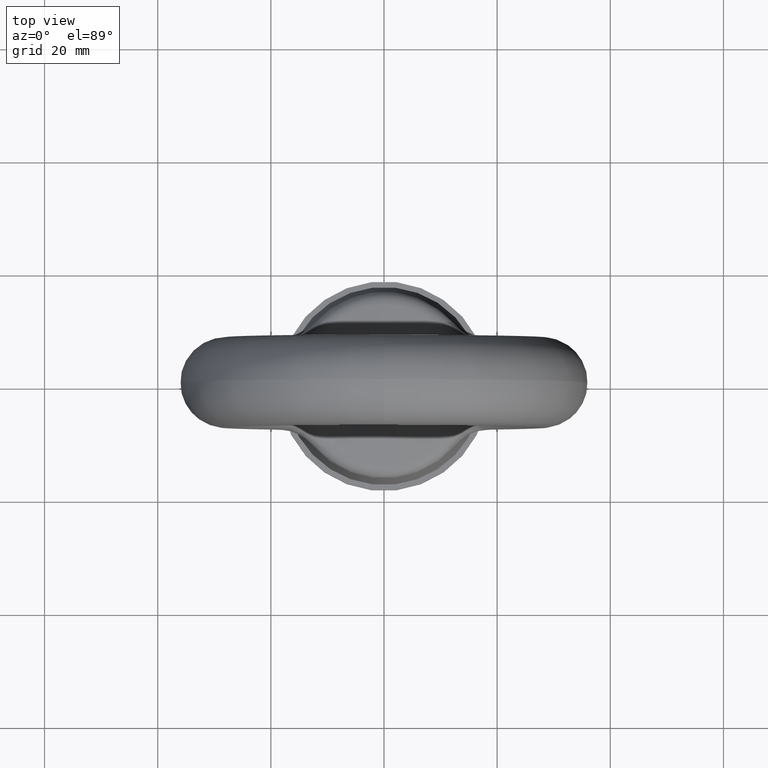
[diagram: clean part render]
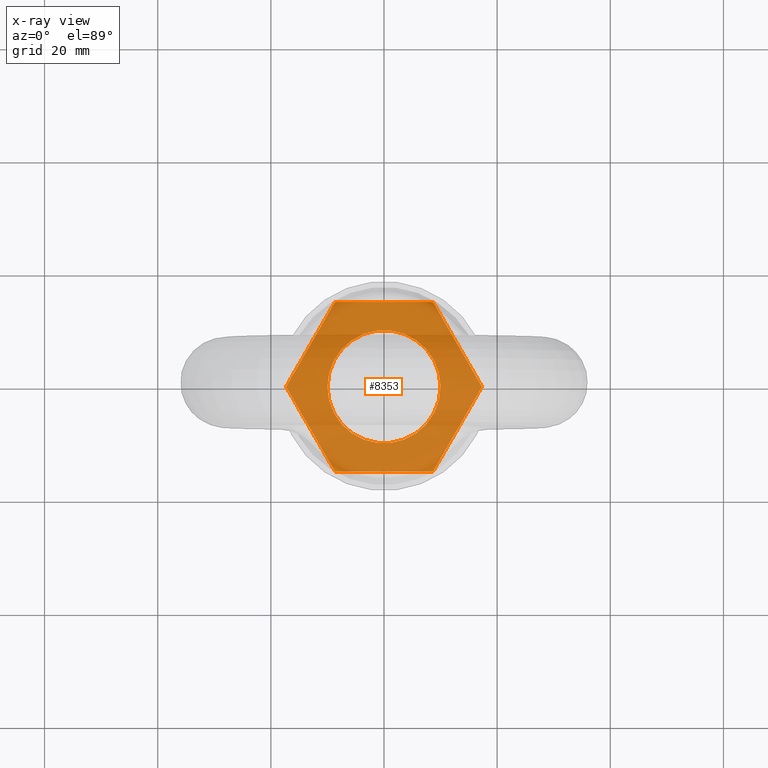
[diagram: x-ray — body ghosted, one internal face saturated and labeled with its STEP entity id]
A machine part, top view, then the same camera in x-ray: the body is ghosted and one INTERNAL B-rep face — a face not visible from any outside direction — is saturated and labeled: STEP entity #8353.
In plain terms, the highlighted planar face has unit normal (0, 0, 1).
Its self-contained STEP definition (entity closure, byte-faithful):
#6356 = DIRECTION ( 'NONE',  ( 1.000000000000000000, 0.0000000000000000000, 0.0000000000000000000 ) ) ;
#6357 = DIRECTION ( 'NONE',  ( 0.0000000000000000000, 0.0000000000000000000, -1.000000000000000000 ) ) ;
#6358 = CARTESIAN_POINT ( 'NONE',  ( 0.0000000000000000000, 0.0000000000000000000, -43.29999900000014900 ) ) ;
#6359 = AXIS2_PLACEMENT_3D ( 'NONE', #6358, #6357, #6356 ) ;
#6360 = CIRCLE ( 'NONE', #6359, 10.00000000000000000 ) ;
#6806 = DIRECTION ( 'NONE',  ( 1.000000000000000000, 0.0000000000000000000, 0.0000000000000000000 ) ) ;
#6807 = DIRECTION ( 'NONE',  ( 0.0000000000000000000, 0.0000000000000000000, 1.000000000000000000 ) ) ;
#6808 = CARTESIAN_POINT ( 'NONE',  ( 0.0000000000000000000, 0.0000000000000000000, -43.29999900000009900 ) ) ;
#6809 = AXIS2_PLACEMENT_3D ( 'NONE', #6808, #6807, #6806 ) ;
#6810 = PLANE ( 'NONE',  #6809 ) ;
#6811 = FACE_BOUND ( 'NONE', #8094, .T. ) ;
#6812 = FACE_OUTER_BOUND ( 'NONE', #8369, .T. ) ;
#6891 = CARTESIAN_POINT ( 'NONE',  ( -17.32050900000000100, 0.0000000000000000000, -43.29999900000014900 ) ) ;
#6892 = CARTESIAN_POINT ( 'NONE',  ( -8.660253999999998300, -15.00000000000000000, -43.29999900000014900 ) ) ;
#6893 = DIRECTION ( 'NONE',  ( 0.5000000416625576300, 0.8660253797305483800, 0.0000000000000000000 ) ) ;
#6894 = VECTOR ( 'NONE', #6893, 1000.000000000000200 ) ;
#6895 = CARTESIAN_POINT ( 'NONE',  ( 8.660253999999998300, -15.00000000000000000, -43.29999900000014900 ) ) ;
#6896 = LINE ( 'NONE', #6895, #6894 ) ;
#6903 = CARTESIAN_POINT ( 'NONE',  ( 8.660253999999998300, 15.00000000000000000, -43.29999900000014900 ) ) ;
#7409 = CARTESIAN_POINT ( 'NONE',  ( -10.00000000000000000, 0.0000000000000000000, -43.29999900000014900 ) ) ;
#7410 = CARTESIAN_POINT ( 'NONE',  ( 10.00000000000000000, 1.224606353822377300E-015, -43.29999900000014900 ) ) ;
#7411 = DIRECTION ( 'NONE',  ( 1.000000000000000000, 0.0000000000000000000, 0.0000000000000000000 ) ) ;
#7412 = DIRECTION ( 'NONE',  ( 0.0000000000000000000, 0.0000000000000000000, -1.000000000000000000 ) ) ;
#7413 = CARTESIAN_POINT ( 'NONE',  ( 0.0000000000000000000, 0.0000000000000000000, -43.29999900000014900 ) ) ;
#7414 = AXIS2_PLACEMENT_3D ( 'NONE', #7413, #7412, #7411 ) ;
#7417 = CIRCLE ( 'NONE', #7414, 10.00000000000000000 ) ;
#7456 = LINE ( 'NONE', #7509, #7508 ) ;
#7490 = DIRECTION ( 'NONE',  ( -1.000000000000000000, 0.0000000000000000000, 0.0000000000000000000 ) ) ;
#7491 = VECTOR ( 'NONE', #7490, 1000.000000000000000 ) ;
#7497 = CARTESIAN_POINT ( 'NONE',  ( -8.660253999999998300, 15.00000000000000000, -43.29999900000014900 ) ) ;
#7507 = DIRECTION ( 'NONE',  ( -0.5000000416625576300, 0.8660253797305483800, 0.0000000000000000000 ) ) ;
#7508 = VECTOR ( 'NONE', #7507, 1000.000000000000200 ) ;
#7509 = CARTESIAN_POINT ( 'NONE',  ( 17.32050900000000100, 0.0000000000000000000, -43.29999900000014900 ) ) ;
#7513 = CARTESIAN_POINT ( 'NONE',  ( 8.660253999999998300, 15.00000000000000000, -43.29999900000014900 ) ) ;
#7514 = LINE ( 'NONE', #7513, #7491 ) ;
#7515 = DIRECTION ( 'NONE',  ( 0.5000000416625576300, -0.8660253797305483800, 0.0000000000000000000 ) ) ;
#7516 = VECTOR ( 'NONE', #7515, 1000.000000000000200 ) ;
#7517 = CARTESIAN_POINT ( 'NONE',  ( -17.32050900000000100, 0.0000000000000000000, -43.29999900000014900 ) ) ;
#7518 = LINE ( 'NONE', #7517, #7516 ) ;
#7533 = DIRECTION ( 'NONE',  ( -0.5000000416625576300, -0.8660253797305483800, 0.0000000000000000000 ) ) ;
#7534 = VECTOR ( 'NONE', #7533, 1000.000000000000200 ) ;
#7535 = CARTESIAN_POINT ( 'NONE',  ( -8.660253999999998300, 15.00000000000000000, -43.29999900000014900 ) ) ;
#7536 = LINE ( 'NONE', #7535, #7534 ) ;
#7537 = CARTESIAN_POINT ( 'NONE',  ( 17.32050900000000100, 0.0000000000000000000, -43.29999900000014900 ) ) ;
#7555 = DIRECTION ( 'NONE',  ( 1.000000000000000000, 0.0000000000000000000, 0.0000000000000000000 ) ) ;
#7556 = VECTOR ( 'NONE', #7555, 1000.000000000000000 ) ;
#7557 = CARTESIAN_POINT ( 'NONE',  ( -8.660253999999998300, -15.00000000000000000, -43.29999900000014900 ) ) ;
#7558 = LINE ( 'NONE', #7557, #7556 ) ;
#7559 = CARTESIAN_POINT ( 'NONE',  ( 8.660253999999998300, -15.00000000000000000, -43.29999900000014900 ) ) ;
#7953 = ORIENTED_EDGE ( 'NONE', *, *, #8671, .T. ) ;
#7954 = ORIENTED_EDGE ( 'NONE', *, *, #8513, .T. ) ;
#8080 = ORIENTED_EDGE ( 'NONE', *, *, #8700, .T. ) ;
#8094 = EDGE_LOOP ( 'NONE', ( #8106, #8080 ) ) ;
#8103 = ORIENTED_EDGE ( 'NONE', *, *, #8501, .T. ) ;
#8104 = ORIENTED_EDGE ( 'NONE', *, *, #8485, .T. ) ;
#8106 = ORIENTED_EDGE ( 'NONE', *, *, #8367, .T. ) ;
#8110 = ORIENTED_EDGE ( 'NONE', *, *, #8331, .T. ) ;
#8325 = VERTEX_POINT ( 'NONE', #6903 ) ;
#8331 = EDGE_CURVE ( 'NONE', #8499, #8510, #6896, .T. ) ;
#8335 = VERTEX_POINT ( 'NONE', #6892 ) ;
#8336 = VERTEX_POINT ( 'NONE', #6891 ) ;
#8353 = ADVANCED_FACE ( 'NONE', ( #6812, #6811 ), #6810, .T. ) ;
#8354 = ORIENTED_EDGE ( 'NONE', *, *, #8670, .T. ) ;
#8367 = EDGE_CURVE ( 'NONE', #8702, #8701, #6360, .T. ) ;
#8369 = EDGE_LOOP ( 'NONE', ( #8354, #8103, #8110, #8104, #7953, #7954 ) ) ;
#8485 = EDGE_CURVE ( 'NONE', #8510, #8325, #7456, .T. ) ;
#8497 = VERTEX_POINT ( 'NONE', #7497 ) ;
#8499 = VERTEX_POINT ( 'NONE', #7559 ) ;
#8501 = EDGE_CURVE ( 'NONE', #8335, #8499, #7558, .T. ) ;
#8510 = VERTEX_POINT ( 'NONE', #7537 ) ;
#8513 = EDGE_CURVE ( 'NONE', #8497, #8336, #7536, .T. ) ;
#8670 = EDGE_CURVE ( 'NONE', #8336, #8335, #7518, .T. ) ;
#8671 = EDGE_CURVE ( 'NONE', #8325, #8497, #7514, .T. ) ;
#8700 = EDGE_CURVE ( 'NONE', #8701, #8702, #7417, .T. ) ;
#8701 = VERTEX_POINT ( 'NONE', #7410 ) ;
#8702 = VERTEX_POINT ( 'NONE', #7409 ) ;